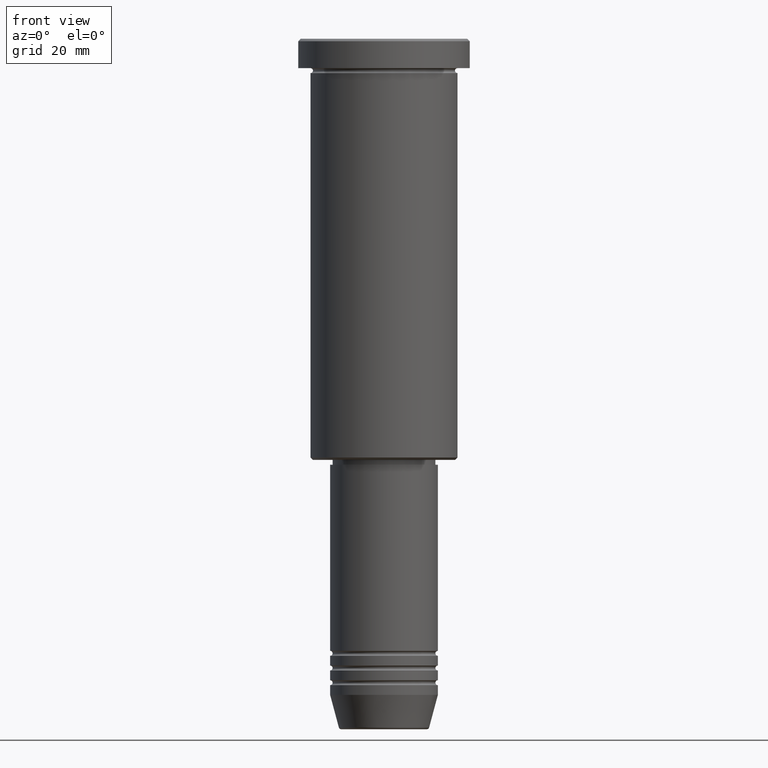
[diagram: clean part render]
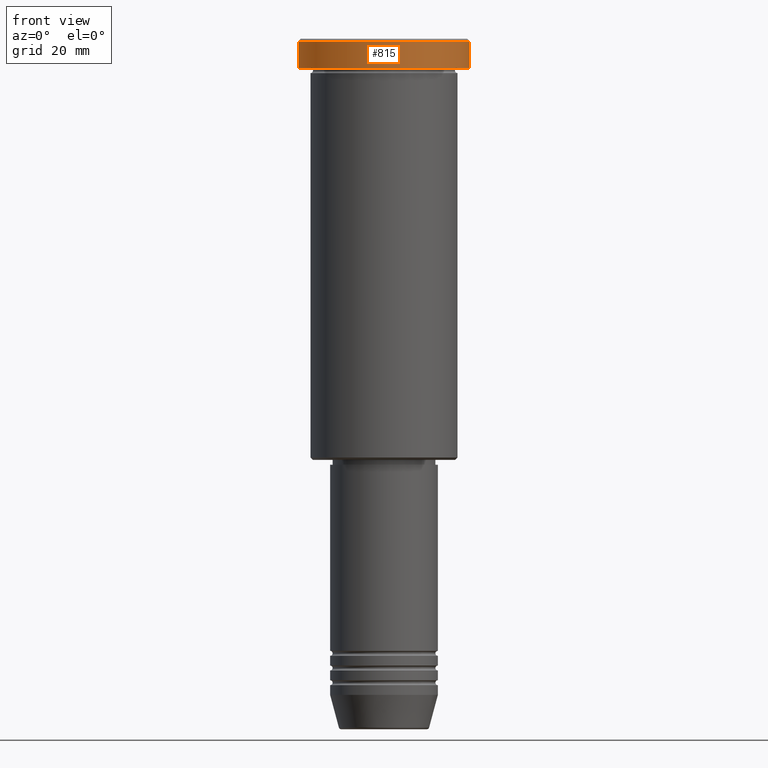
[diagram: same view with one face highlighted and labeled with its STEP entity id]
A machine part, front view. The second image highlights one B-rep face of the part: STEP entity #815.
In plain terms, the highlighted cylindrical surface (partial cylindrical patch) has radius 17.5 mm, axis along (-0, -0, 1).
Its self-contained STEP definition (entity closure, byte-faithful):
#45 = DIRECTION ( 'NONE',  ( 1.000000000000000000, 0.000000000000000000, 0.000000000000000000 ) ) ;
#95 = ORIENTED_EDGE ( 'NONE', *, *, #809, .T. ) ;
#111 = CARTESIAN_POINT ( 'NONE',  ( 17.50000000000000000, 0.000000000000000000, -0.5000000000000143219 ) ) ;
#120 = CYLINDRICAL_SURFACE ( 'NONE', #351, 17.50000000000000000 ) ;
#136 = DIRECTION ( 'NONE',  ( 0.000000000000000000, 0.000000000000000000, -1.000000000000000000 ) ) ;
#167 = ORIENTED_EDGE ( 'NONE', *, *, #230, .F. ) ;
#171 = VERTEX_POINT ( 'NONE', #285 ) ;
#220 = DIRECTION ( 'NONE',  ( 1.000000000000000000, 0.000000000000000000, 0.000000000000000000 ) ) ;
#230 = EDGE_CURVE ( 'NONE', #1101, #919, #1178, .T. ) ;
#243 = VERTEX_POINT ( 'NONE', #111 ) ;
#285 = CARTESIAN_POINT ( 'NONE',  ( 17.50000000000000000, 0.000000000000000000, -5.999999999999995559 ) ) ;
#297 = DIRECTION ( 'NONE',  ( -0.000000000000000000, -0.000000000000000000, 1.000000000000000000 ) ) ;
#299 = CARTESIAN_POINT ( 'NONE',  ( 0.000000000000000000, 0.000000000000000000, -0.5000000000000143219 ) ) ;
#303 = ORIENTED_EDGE ( 'NONE', *, *, #1131, .T. ) ;
#335 = EDGE_LOOP ( 'NONE', ( #167, #95, #303, #475 ) ) ;
#351 = AXIS2_PLACEMENT_3D ( 'NONE', #925, #851, #45 ) ;
#367 = DIRECTION ( 'NONE',  ( -0.000000000000000000, -0.000000000000000000, 1.000000000000000000 ) ) ;
#393 = EDGE_CURVE ( 'NONE', #243, #919, #855, .T. ) ;
#437 = VECTOR ( 'NONE', #367, 1000.000000000000000 ) ;
#475 = ORIENTED_EDGE ( 'NONE', *, *, #393, .T. ) ;
#494 = CARTESIAN_POINT ( 'NONE',  ( 0.000000000000000000, 0.000000000000000000, -5.999999999999995559 ) ) ;
#536 = CARTESIAN_POINT ( 'NONE',  ( -17.50000000000000000, 2.143131898507868248E-15, 0.000000000000000000 ) ) ;
#552 = FACE_OUTER_BOUND ( 'NONE', #335, .T. ) ;
#566 = VECTOR ( 'NONE', #297, 1000.000000000000000 ) ;
#634 = CARTESIAN_POINT ( 'NONE',  ( -17.50000000000000000, 2.143131898507868248E-15, -5.999999999999995559 ) ) ;
#643 = AXIS2_PLACEMENT_3D ( 'NONE', #299, #136, #220 ) ;
#709 = LINE ( 'NONE', #1082, #566 ) ;
#741 = CIRCLE ( 'NONE', #757, 17.50000000000000000 ) ;
#752 = DIRECTION ( 'NONE',  ( 1.000000000000000000, 0.000000000000000000, 0.000000000000000000 ) ) ;
#757 = AXIS2_PLACEMENT_3D ( 'NONE', #494, #944, #752 ) ;
#809 = EDGE_CURVE ( 'NONE', #1101, #171, #741, .T. ) ;
#815 = ADVANCED_FACE ( 'NONE', ( #552 ), #120, .T. ) ;
#851 = DIRECTION ( 'NONE',  ( -0.000000000000000000, -0.000000000000000000, 1.000000000000000000 ) ) ;
#855 = CIRCLE ( 'NONE', #643, 17.50000000000000000 ) ;
#919 = VERTEX_POINT ( 'NONE', #966 ) ;
#925 = CARTESIAN_POINT ( 'NONE',  ( 0.000000000000000000, 0.000000000000000000, 0.000000000000000000 ) ) ;
#944 = DIRECTION ( 'NONE',  ( -0.000000000000000000, -0.000000000000000000, 1.000000000000000000 ) ) ;
#966 = CARTESIAN_POINT ( 'NONE',  ( -17.50000000000000000, 2.143131898507868248E-15, -0.5000000000000143219 ) ) ;
#1082 = CARTESIAN_POINT ( 'NONE',  ( 17.50000000000000000, 0.000000000000000000, 0.000000000000000000 ) ) ;
#1101 = VERTEX_POINT ( 'NONE', #634 ) ;
#1131 = EDGE_CURVE ( 'NONE', #171, #243, #709, .T. ) ;
#1178 = LINE ( 'NONE', #536, #437 ) ;